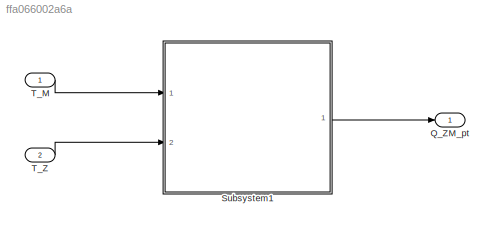
MODEL slx_ffa066002a6a
KIND model
CONFIG AbsTol = auto
CONFIG EnableMultiTasking = off
CONFIG FixedStep = auto
CONFIG MaxStep = auto
CONFIG MinStep = auto
CONFIG RelTol = 1e-3
CONFIG SampleTimeConstraint = Unconstrained
CONFIG Solver = VariableStepAuto
CONFIG SolverName = VariableStepAuto
CONFIG StartTime = 0.0
CONFIG StopTime = 10.0
BLOCK [Outport] Q_ZM_pt
  IconDisplay = Port number
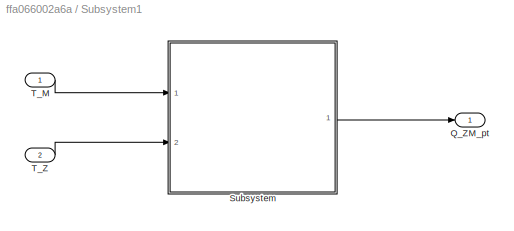
BLOCK [SubSystem] Subsystem1
  Ports = [2, 1]
  RequestExecContextInheritance = off
  Variant = off
BLOCK [Outport] Subsystem1/Q_ZM_pt
  IconDisplay = Port number
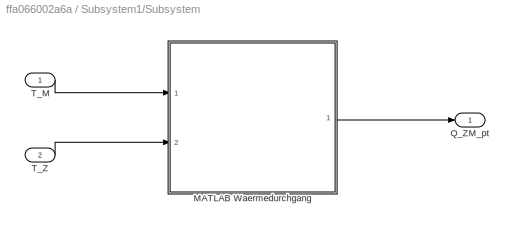
BLOCK [SubSystem] Subsystem1/Subsystem
  Ports = [2, 1]
  RequestExecContextInheritance = off
  Variant = off
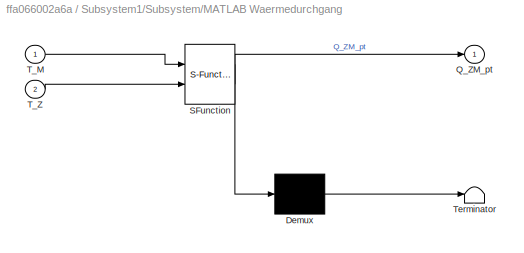
BLOCK [SubSystem] Subsystem1/Subsystem/MATLAB Waermedurchgang
  ErrorFcn = Stateflow.Translate.translate
  PermitHierarchicalResolution = ExplicitOnly
  Ports = [2, 1]
  RequestExecContextInheritance = off
  SFBlockType = MATLAB Function
  TreatAsAtomicUnit = on
  Variant = off
BLOCK [Demux] Subsystem1/Subsystem/MATLAB Waermedurchgang/ Demux 
  Outputs = 1
  Ports = [1, 1]
BLOCK [S-Function] Subsystem1/Subsystem/MATLAB Waermedurchgang/ SFunction 
  EnableBusSupport = off
  FunctionName = sf_sfun
  PortCounts = [2 2]
  Ports = [2, 2]
  SFcnIsStateOwnerBlock = off
  SFunctionDeploymentMode = off
  Tag = Stateflow S-Function Modell 1
BLOCK [Terminator] Subsystem1/Subsystem/MATLAB Waermedurchgang/ Terminator 
BLOCK [Outport] Subsystem1/Subsystem/MATLAB Waermedurchgang/Q_ZM_pt
  IconDisplay = Port number
BLOCK [Inport] Subsystem1/Subsystem/MATLAB Waermedurchgang/T_M
  IconDisplay = Port number
BLOCK [Inport] Subsystem1/Subsystem/MATLAB Waermedurchgang/T_Z
  IconDisplay = Port number
  Port = 2
BLOCK [Outport] Subsystem1/Subsystem/Q_ZM_pt
  IconDisplay = Port number
BLOCK [Inport] Subsystem1/Subsystem/T_M
  IconDisplay = Port number
BLOCK [Inport] Subsystem1/Subsystem/T_Z
  IconDisplay = Port number
  Port = 2
BLOCK [Inport] Subsystem1/T_M
  IconDisplay = Port number
BLOCK [Inport] Subsystem1/T_Z
  IconDisplay = Port number
  Port = 2
BLOCK [Inport] T_M
  IconDisplay = Port number
BLOCK [Inport] T_Z
  IconDisplay = Port number
  Port = 2
LINE Subsystem1/Subsystem/MATLAB Waermedurchgang:1 -> Subsystem1/Subsystem/Q_ZM_pt:1
LINE Subsystem1/Subsystem/T_M:1 -> Subsystem1/Subsystem/MATLAB Waermedurchgang:1
LINE Subsystem1/Subsystem/T_Z:1 -> Subsystem1/Subsystem/MATLAB Waermedurchgang:2
LINE Subsystem1/Subsystem:1 -> Subsystem1/Q_ZM_pt:1
LINE Subsystem1/T_M:1 -> Subsystem1/Subsystem:1
LINE Subsystem1/T_Z:1 -> Subsystem1/Subsystem:2
LINE Subsystem1:1 -> Q_ZM_pt:1
LINE T_M:1 -> Subsystem1:1
LINE T_Z:1 -> Subsystem1:2
CHART Subsystem1/Subsystem/MATLAB Waermedurchgang states=1 transitions=1
  STATE_LABEL 'eML_blk_kernel()'
  STATE_LABEL "SCRIPT:\nfunction Q_ZM_pt =   Waermedurchgang(T_M, T_Z)\n%#codegen\ncoder.extrinsic('IAPWS_IF97');\n%Sattigungs dampfgehalt x_Dend\n\nQ_ZM_pt = 0.5*(T_M - T_Z);\n\nend\n\n\n"
